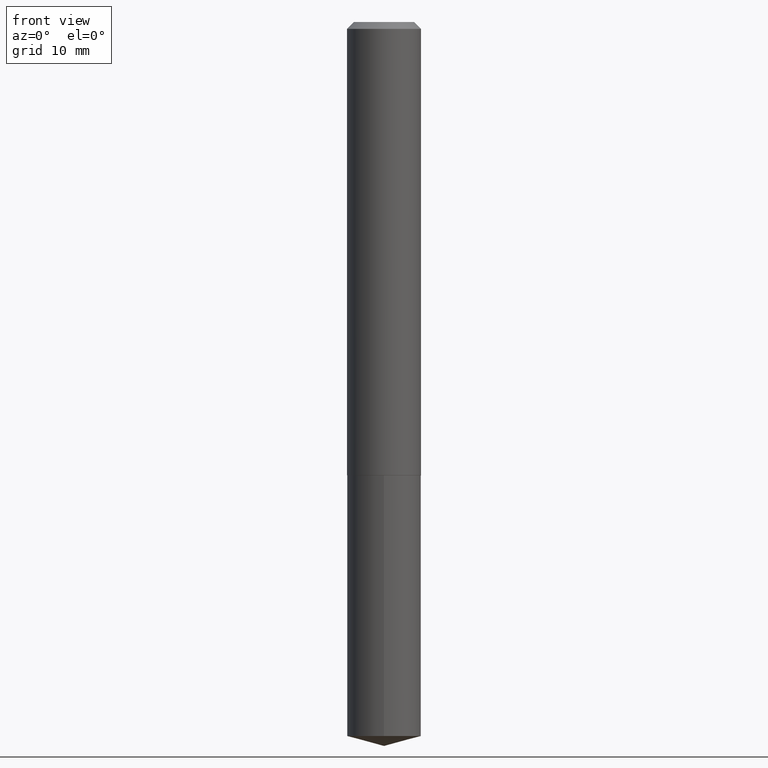
[diagram: clean part render]
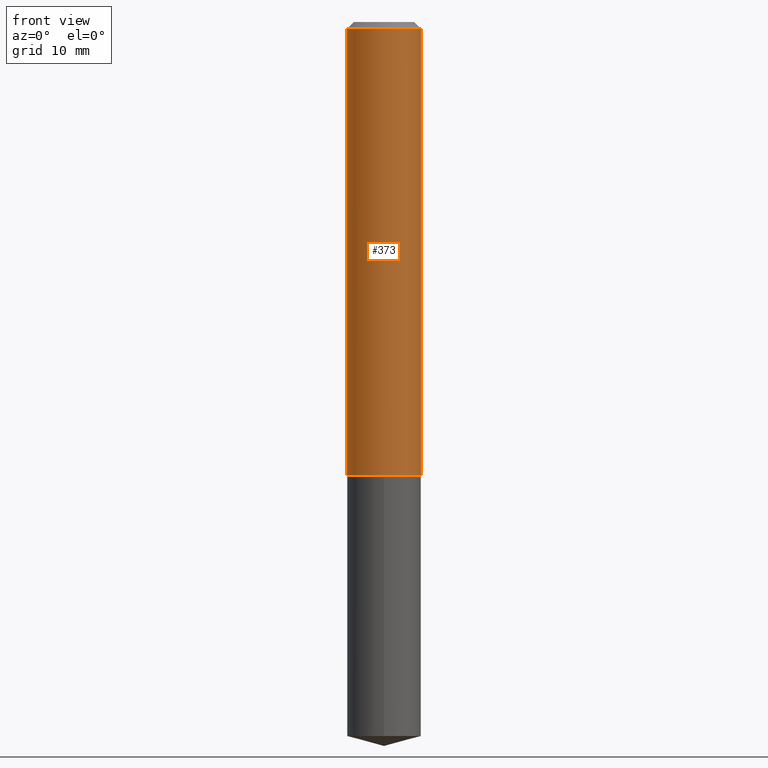
[diagram: same view with one face highlighted and labeled with its STEP entity id]
A machine part, front view. The second image highlights one B-rep face of the part: STEP entity #373.
In plain terms, the highlighted cylindrical surface (partial cylindrical patch) has radius 4.3002 mm, axis along (-0, 0, 1).
Its self-contained STEP definition (entity closure, byte-faithful):
#11 = EDGE_CURVE ( 'NONE', #353, #146, #65, .T. ) ;
#30 = CARTESIAN_POINT ( 'NONE',  ( 0.1693000000000000338, -1.291324373171134113E-15, -0.03125000000000020123 ) ) ;
#39 = DIRECTION ( 'NONE',  ( -2.445468806185136877E-29, 3.491481338843145188E-15, 1.000000000000000000 ) ) ;
#40 = VECTOR ( 'NONE', #39, 39.37007874015748143 ) ;
#41 = DIRECTION ( 'NONE',  ( 1.000000000000000000, -6.982962677686266711E-15, 4.876176775795935793E-29 ) ) ;
#46 = LINE ( 'NONE', #101, #120 ) ;
#55 = CARTESIAN_POINT ( 'NONE',  ( 5.063098616325708028E-29, -7.228762963940850701E-15, -2.070400000000000240 ) ) ;
#64 = DIRECTION ( 'NONE',  ( -2.445468806185136597E-29, 3.491481338843145583E-15, 1.000000000000000000 ) ) ;
#65 = LINE ( 'NONE', #344, #40 ) ;
#101 = CARTESIAN_POINT ( 'NONE',  ( -0.1693000000000001448, 1.202948851641850644E-15, -8.327757107801562718E-30 ) ) ;
#108 = EDGE_LOOP ( 'NONE', ( #385, #143, #183, #325 ) ) ;
#117 = DIRECTION ( 'NONE',  ( -2.445468806185136597E-29, 3.491481338843145583E-15, 1.000000000000000000 ) ) ;
#118 = CARTESIAN_POINT ( 'NONE',  ( 0.000000000000000000, 0.000000000000000000, 0.000000000000000000 ) ) ;
#119 = CIRCLE ( 'NONE', #356, 0.1693000000000000338 ) ;
#120 = VECTOR ( 'NONE', #215, 39.37007874015748143 ) ;
#143 = ORIENTED_EDGE ( 'NONE', *, *, #291, .T. ) ;
#146 = VERTEX_POINT ( 'NONE', #30 ) ;
#173 = DIRECTION ( 'NONE',  ( 1.000000000000000000, -6.982962677686264344E-15, 0.000000000000000000 ) ) ;
#183 = ORIENTED_EDGE ( 'NONE', *, *, #11, .T. ) ;
#189 = DIRECTION ( 'NONE',  ( 1.000000000000000000, -6.982962677686265922E-15, 0.000000000000000000 ) ) ;
#190 = DIRECTION ( 'NONE',  ( -2.445468806185136597E-29, 3.491481338843145583E-15, 1.000000000000000000 ) ) ;
#192 = EDGE_CURVE ( 'NONE', #276, #146, #119, .T. ) ;
#195 = FACE_OUTER_BOUND ( 'NONE', #108, .T. ) ;
#215 = DIRECTION ( 'NONE',  ( -2.445468806185136877E-29, 3.491481338843145188E-15, 1.000000000000000000 ) ) ;
#247 = CARTESIAN_POINT ( 'NONE',  ( -0.1693000000000000338, -2.465987026247997876E-15, -0.03125000000000020123 ) ) ;
#276 = VERTEX_POINT ( 'NONE', #247 ) ;
#291 = EDGE_CURVE ( 'NONE', #303, #353, #360, .T. ) ;
#303 = VERTEX_POINT ( 'NONE', #342 ) ;
#308 = AXIS2_PLACEMENT_3D ( 'NONE', #118, #190, #41 ) ;
#325 = ORIENTED_EDGE ( 'NONE', *, *, #192, .F. ) ;
#342 = CARTESIAN_POINT ( 'NONE',  ( -0.1693000000000002836, -6.025814112298998676E-15, -2.070400000000000240 ) ) ;
#343 = CARTESIAN_POINT ( 'NONE',  ( 7.642090019328600035E-31, -1.091087918388489897E-16, -0.03125000000000020123 ) ) ;
#344 = CARTESIAN_POINT ( 'NONE',  ( 0.1693000000000001448, -1.182215581332285999E-15, 8.255367281422526831E-30 ) ) ;
#345 = CYLINDRICAL_SURFACE ( 'NONE', #308, 0.1693000000000001448 ) ;
#346 = AXIS2_PLACEMENT_3D ( 'NONE', #55, #117, #173 ) ;
#353 = VERTEX_POINT ( 'NONE', #371 ) ;
#356 = AXIS2_PLACEMENT_3D ( 'NONE', #343, #64, #189 ) ;
#359 = EDGE_CURVE ( 'NONE', #303, #276, #46, .T. ) ;
#360 = CIRCLE ( 'NONE', #346, 0.1693000000000002836 ) ;
#371 = CARTESIAN_POINT ( 'NONE',  ( 0.1693000000000002836, -8.410978545273137094E-15, -2.070400000000000240 ) ) ;
#373 = ADVANCED_FACE ( 'NONE', ( #195 ), #345, .T. ) ;
#385 = ORIENTED_EDGE ( 'NONE', *, *, #359, .F. ) ;